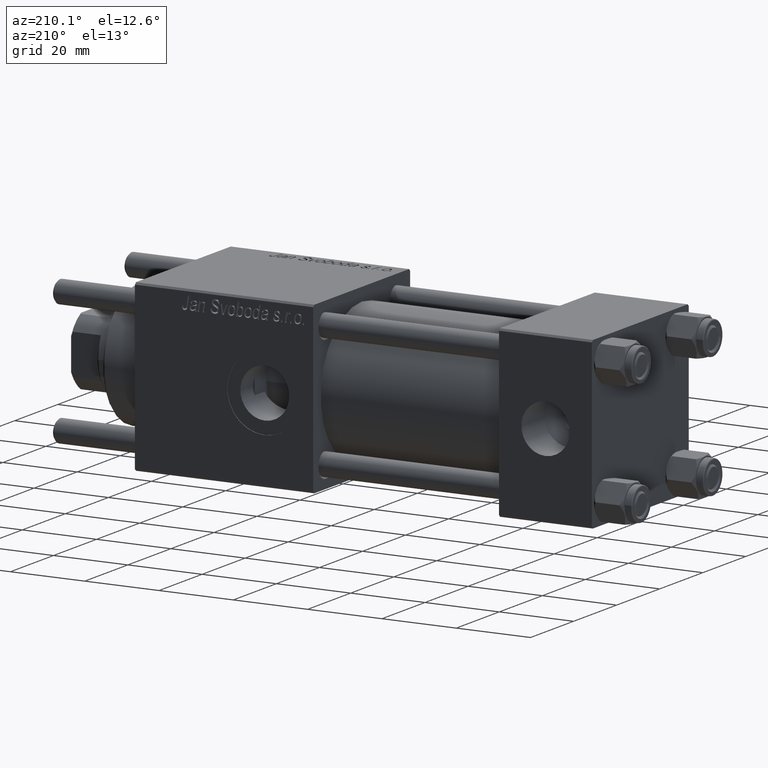
[diagram: clean part render]
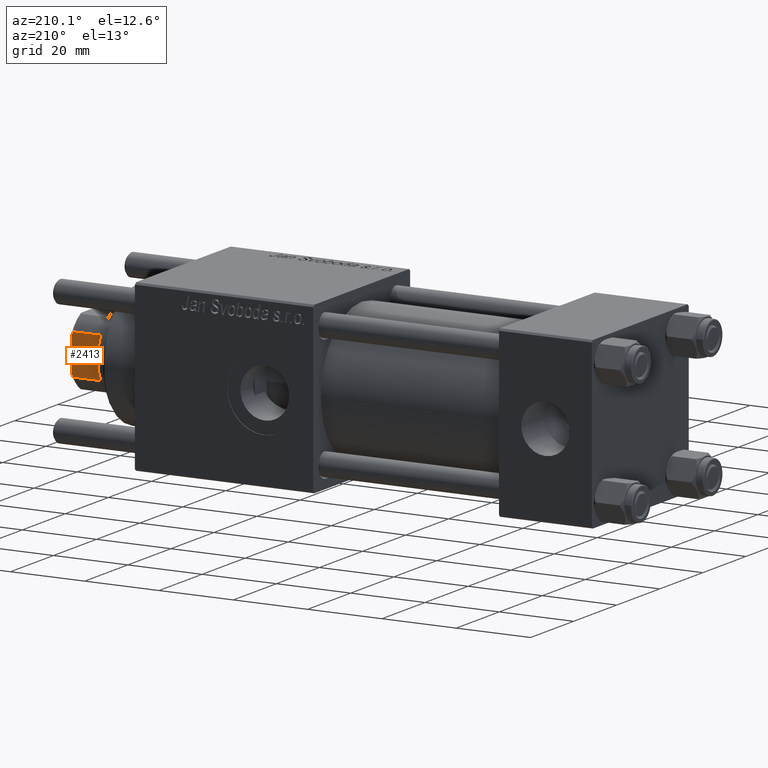
[diagram: same view with one face highlighted and labeled with its STEP entity id]
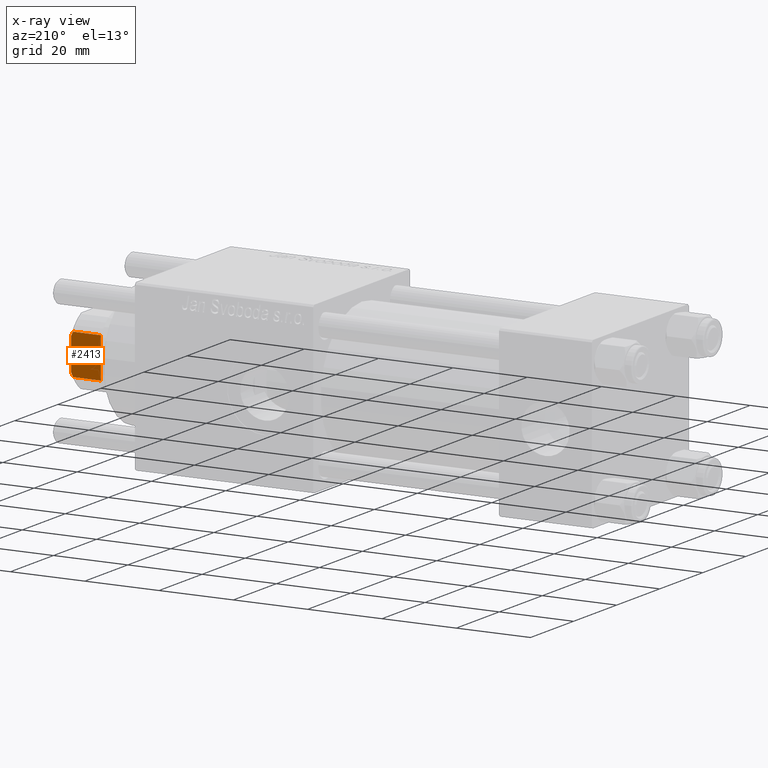
[diagram: x-ray of the same camera — body ghosted, the highlighted face saturated]
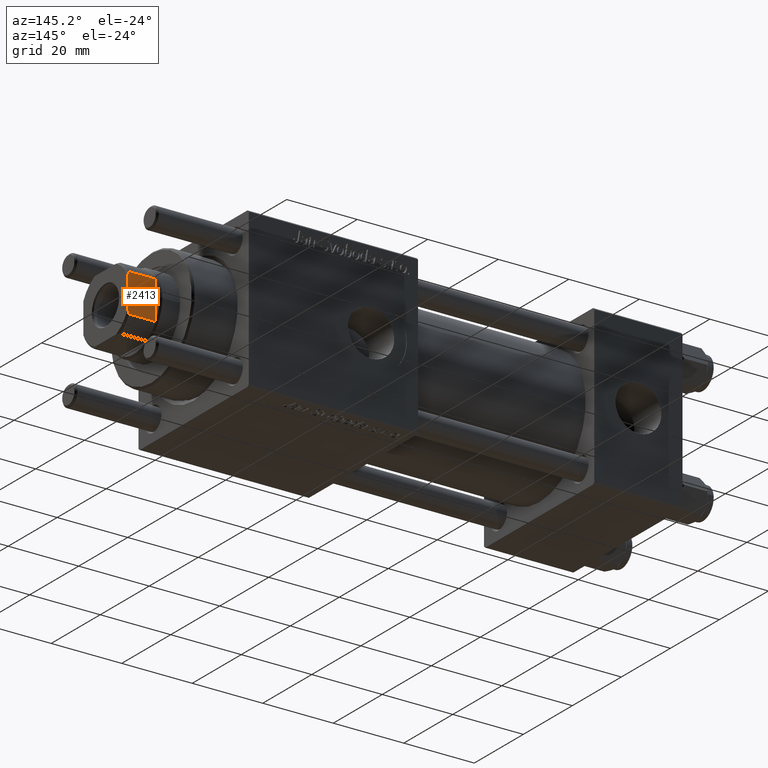
[diagram: same view with one face highlighted and labeled with its STEP entity id]
A machine part, auxiliary view. The second image highlights one B-rep face of the part: STEP entity #2413.
The next image is the same camera in x-ray: the body ghosted, the highlighted face saturated — about 0% of this face is hidden behind the body in this view.
A second angle (auxiliary view) of the same face is appended — the face is thin or edge-on in the first view.
In plain terms, the highlighted planar face has unit normal (0, -1, -0).
Its self-contained STEP definition (entity closure, byte-faithful):
#618 = CARTESIAN_POINT ( 'NONE',  ( -8.999999999999996447, 5.408326913195991459, -0.001000000000001000089 ) ) ;
#1968 = CARTESIAN_POINT ( 'NONE',  ( -9.000000000000003553, 5.063687070142450786, 122.6775166608139216 ) ) ;
#2249 = CARTESIAN_POINT ( 'NONE',  ( -9.000000000000001776, 4.714305797500244921, 122.8450817439748448 ) ) ;
#2413 = ADVANCED_FACE ( 'NONE', ( #24358 ), #6296, .F. ) ;
#3732 = VERTEX_POINT ( 'NONE', #35380 ) ;
#4629 = DIRECTION ( 'NONE',  ( -0.000000000000000000, -0.000000000000000000, 1.000000000000000000 ) ) ;
#4724 = VECTOR ( 'NONE', #50536, 1000.000000000000000 ) ;
#5300 = CARTESIAN_POINT ( 'NONE',  ( -9.000000000000000000, -5.408326913195987018, 115.0000000000000284 ) ) ;
#6296 = PLANE ( 'NONE',  #24052 ) ;
#8795 = ORIENTED_EDGE ( 'NONE', *, *, #18530, .T. ) ;
#9457 = DIRECTION ( 'NONE',  ( 9.637352644315595243E-17, -1.000000000000000000, 0.000000000000000000 ) ) ;
#9562 = EDGE_CURVE ( 'NONE', #36100, #34593, #26270, .T. ) ;
#12938 = B_SPLINE_CURVE_WITH_KNOTS ( 'NONE', 3,
 ( #36440, #2249, #1968, #32698 ),
 .UNSPECIFIED., .F., .F.,
 ( 4, 4 ),
 ( 0.000000000000000000, 0.001162453897363206236 ),
 .UNSPECIFIED. ) ;
#15482 = LINE ( 'NONE', #33011, #4724 ) ;
#15561 = EDGE_CURVE ( 'NONE', #46203, #41066, #15482, .T. ) ;
#16871 = EDGE_CURVE ( 'NONE', #46203, #3732, #12938, .T. ) ;
#17618 = VECTOR ( 'NONE', #9457, 1000.000000000000000 ) ;
#18530 = EDGE_CURVE ( 'NONE', #29168, #36100, #44510, .T. ) ;
#23595 = CARTESIAN_POINT ( 'NONE',  ( -9.000000000000000000, -5.408326913195987018, 122.5000000000000000 ) ) ;
#23792 = CARTESIAN_POINT ( 'NONE',  ( -9.000000000000003553, 8.999999999999998224, 123.0000000000000000 ) ) ;
#24052 = AXIS2_PLACEMENT_3D ( 'NONE', #23792, #54260, #37301 ) ;
#24358 = FACE_OUTER_BOUND ( 'NONE', #50370, .T. ) ;
#26270 = LINE ( 'NONE', #38646, #37657 ) ;
#26449 = LINE ( 'NONE', #618, #51054 ) ;
#28459 = CARTESIAN_POINT ( 'NONE',  ( -9.000000000000000000, -5.063687070142446345, 122.6775166608139216 ) ) ;
#29107 = CARTESIAN_POINT ( 'NONE',  ( -8.999999999999996447, 5.408326913195988794, 115.0000000000000284 ) ) ;
#29168 = VERTEX_POINT ( 'NONE', #29107 ) ;
#30682 = ORIENTED_EDGE ( 'NONE', *, *, #37993, .F. ) ;
#32502 = CARTESIAN_POINT ( 'NONE',  ( -9.000000000000001776, -4.714305797500246697, 122.8450817439748448 ) ) ;
#32698 = CARTESIAN_POINT ( 'NONE',  ( -8.999999999999996447, 5.408326913195991459, 122.5000000000000000 ) ) ;
#33011 = CARTESIAN_POINT ( 'NONE',  ( -9.000000000000003553, 8.999999999999998224, 123.0000000000000000 ) ) ;
#33066 = CARTESIAN_POINT ( 'NONE',  ( -9.000000000000003553, -4.358898943540665094, 123.0000000000000000 ) ) ;
#34150 = B_SPLINE_CURVE_WITH_KNOTS ( 'NONE', 3,
 ( #23595, #28459, #32502, #33066 ),
 .UNSPECIFIED., .F., .F.,
 ( 4, 4 ),
 ( 0.000000000000000000, 0.001162453897363199297 ),
 .UNSPECIFIED. ) ;
#34593 = VERTEX_POINT ( 'NONE', #41112 ) ;
#35380 = CARTESIAN_POINT ( 'NONE',  ( -8.999999999999996447, 5.408326913195991459, 122.5000000000000000 ) ) ;
#36100 = VERTEX_POINT ( 'NONE', #5300 ) ;
#36440 = CARTESIAN_POINT ( 'NONE',  ( -9.000000000000003553, 4.358898943540662430, 123.0000000000000000 ) ) ;
#37301 = DIRECTION ( 'NONE',  ( -9.637352644315595243E-17, 1.000000000000000000, 0.000000000000000000 ) ) ;
#37657 = VECTOR ( 'NONE', #48395, 1000.000000000000000 ) ;
#37993 = EDGE_CURVE ( 'NONE', #29168, #3732, #26449, .T. ) ;
#38646 = CARTESIAN_POINT ( 'NONE',  ( -9.000000000000000000, -5.408326913195987018, -0.001000000000001000089 ) ) ;
#38768 = EDGE_CURVE ( 'NONE', #34593, #41066, #34150, .T. ) ;
#41066 = VERTEX_POINT ( 'NONE', #43496 ) ;
#41112 = CARTESIAN_POINT ( 'NONE',  ( -9.000000000000000000, -5.408326913195987018, 122.5000000000000000 ) ) ;
#41290 = CARTESIAN_POINT ( 'NONE',  ( -9.000000000000003553, 4.358898943540662430, 123.0000000000000000 ) ) ;
#43496 = CARTESIAN_POINT ( 'NONE',  ( -9.000000000000003553, -4.358898943540665094, 123.0000000000000000 ) ) ;
#44510 = LINE ( 'NONE', #49391, #17618 ) ;
#46203 = VERTEX_POINT ( 'NONE', #41290 ) ;
#48395 = DIRECTION ( 'NONE',  ( -0.000000000000000000, -0.000000000000000000, 1.000000000000000000 ) ) ;
#49391 = CARTESIAN_POINT ( 'NONE',  ( -9.000000000000003553, 8.999999999999998224, 115.0000000000000000 ) ) ;
#49877 = ORIENTED_EDGE ( 'NONE', *, *, #15561, .F. ) ;
#50232 = ORIENTED_EDGE ( 'NONE', *, *, #16871, .T. ) ;
#50370 = EDGE_LOOP ( 'NONE', ( #52745, #56770, #49877, #50232, #30682, #8795 ) ) ;
#50536 = DIRECTION ( 'NONE',  ( 9.637352644315595243E-17, -1.000000000000000000, 0.000000000000000000 ) ) ;
#51054 = VECTOR ( 'NONE', #4629, 1000.000000000000000 ) ;
#52745 = ORIENTED_EDGE ( 'NONE', *, *, #9562, .T. ) ;
#54260 = DIRECTION ( 'NONE',  ( 1.000000000000000000, 9.637352644315595243E-17, -0.000000000000000000 ) ) ;
#56770 = ORIENTED_EDGE ( 'NONE', *, *, #38768, .T. ) ;